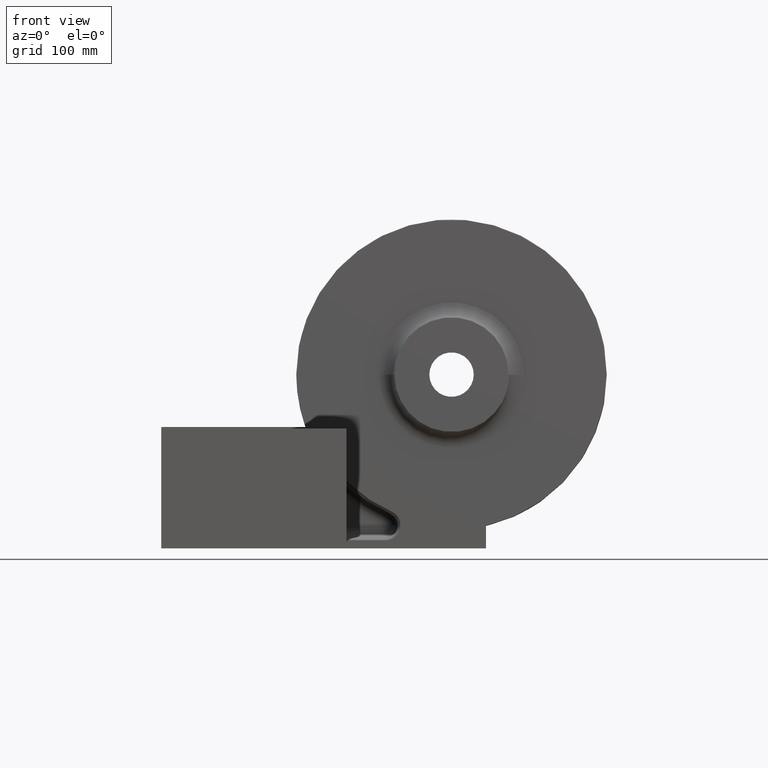
[diagram: clean part render]
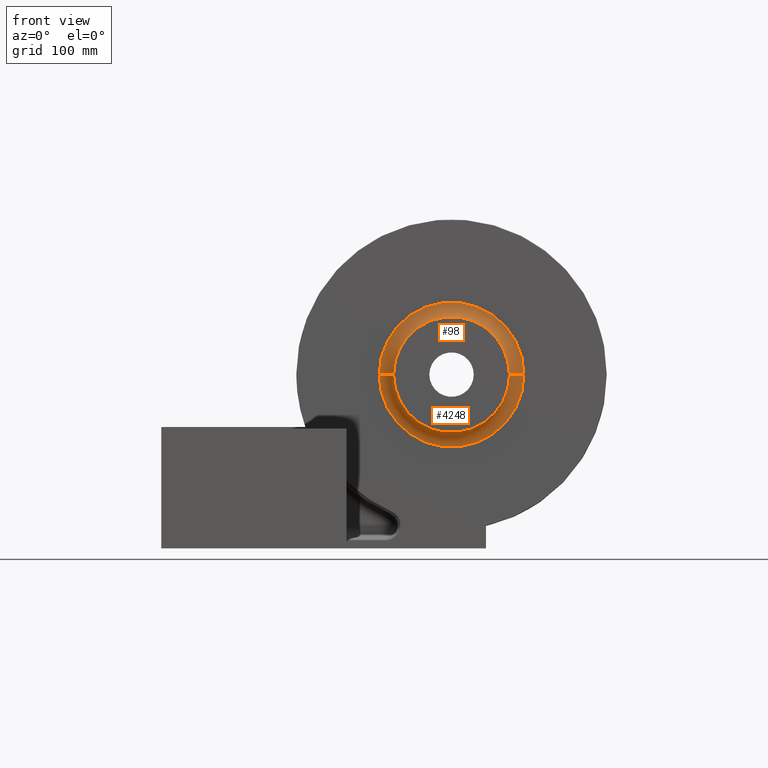
[diagram: same view with one multi-face feature highlighted, each face labeled with its STEP entity id]
A machine part, front view. The highlighted faces form ONE feature: a constant-radius fillet chain: 2 tangent blend faces with common blend radius 15 mm. The faces share edges in the B-rep.
Their STEP definitions:
[1] entity #98 (Torus):
#98 = ADVANCED_FACE ( 'NONE', ( #1834 ), #2494, .F. ) ;
#121 = DIRECTION ( 'NONE',  ( 1.000000000000000000, 0.0000000000000000000, 0.0000000000000000000 ) ) ;
#447 = DIRECTION ( 'NONE',  ( -0.0000000000000000000, 0.0000000000000000000, 1.000000000000000000 ) ) ;
#514 = CARTESIAN_POINT ( 'NONE',  ( 373.7417837622145385, 399.9998999999999683, 55.99999999999999289 ) ) ;
#629 = VERTEX_POINT ( 'NONE', #673 ) ;
#657 = CARTESIAN_POINT ( 'NONE',  ( 223.7417837622144532, 384.9999000000000251, 55.99999999999998579 ) ) ;
#673 = CARTESIAN_POINT ( 'NONE',  ( 238.7417837622145100, 384.9999000000000251, 55.99999999999998579 ) ) ;
#887 = DIRECTION ( 'NONE',  ( -1.214623636765614367E-16, -1.000000000000000000, -0.0000000000000000000 ) ) ;
#1044 = VERTEX_POINT ( 'NONE', #3683 ) ;
#1337 = CIRCLE ( 'NONE', #1490, 60.00000000000005684 ) ;
#1342 = CIRCLE ( 'NONE', #3135, 75.00000000000001421 ) ;
#1490 = AXIS2_PLACEMENT_3D ( 'NONE', #2328, #887, #121 ) ;
#1766 = ORIENTED_EDGE ( 'NONE', *, *, #3913, .F. ) ;
#1834 = FACE_OUTER_BOUND ( 'NONE', #4511, .T. ) ;
#1918 = DIRECTION ( 'NONE',  ( 1.000000000000000000, 0.0000000000000000000, 0.0000000000000000000 ) ) ;
#2002 = ORIENTED_EDGE ( 'NONE', *, *, #3216, .T. ) ;
#2107 = VERTEX_POINT ( 'NONE', #3969 ) ;
#2205 = AXIS2_PLACEMENT_3D ( 'NONE', #657, #2469, #2811 ) ;
#2328 = CARTESIAN_POINT ( 'NONE',  ( 298.7417837622145385, 384.9999000000000251, 55.99999999999999289 ) ) ;
#2389 = DIRECTION ( 'NONE',  ( 1.214623636765614367E-16, 1.000000000000000000, 0.0000000000000000000 ) ) ;
#2469 = DIRECTION ( 'NONE',  ( 1.224646799147353207E-16, -1.487484948933726914E-32, -1.000000000000000000 ) ) ;
#2494 = TOROIDAL_SURFACE ( 'NONE', #3194, 75.00000000000004263, 15.00000000000000000 ) ;
#2570 = CARTESIAN_POINT ( 'NONE',  ( 298.7417837622145385, 399.9998999999999683, 55.99999999999999289 ) ) ;
#2800 = EDGE_CURVE ( 'NONE', #1044, #629, #1337, .T. ) ;
#2811 = DIRECTION ( 'NONE',  ( -1.000000000000000000, 0.0000000000000000000, 0.0000000000000000000 ) ) ;
#2911 = CIRCLE ( 'NONE', #3225, 15.00000000000001421 ) ;
#2972 = DIRECTION ( 'NONE',  ( 1.000000000000000000, 0.0000000000000000000, 0.0000000000000000000 ) ) ;
#3122 = DIRECTION ( 'NONE',  ( 1.000000000000000000, -1.214623636765614367E-16, 0.0000000000000000000 ) ) ;
#3135 = AXIS2_PLACEMENT_3D ( 'NONE', #2570, #4081, #1918 ) ;
#3194 = AXIS2_PLACEMENT_3D ( 'NONE', #3920, #2389, #3122 ) ;
#3216 = EDGE_CURVE ( 'NONE', #3257, #2107, #1342, .T. ) ;
#3225 = AXIS2_PLACEMENT_3D ( 'NONE', #3390, #447, #2972 ) ;
#3257 = VERTEX_POINT ( 'NONE', #514 ) ;
#3337 = ORIENTED_EDGE ( 'NONE', *, *, #2800, .F. ) ;
#3376 = CIRCLE ( 'NONE', #2205, 14.99999999999998579 ) ;
#3390 = CARTESIAN_POINT ( 'NONE',  ( 373.7417837622145385, 384.9999000000000251, 55.99999999999999289 ) ) ;
#3683 = CARTESIAN_POINT ( 'NONE',  ( 358.7417837622145953, 384.9999000000000251, 55.99999999999999289 ) ) ;
#3729 = EDGE_CURVE ( 'NONE', #2107, #629, #3376, .T. ) ;
#3793 = ORIENTED_EDGE ( 'NONE', *, *, #3729, .T. ) ;
#3913 = EDGE_CURVE ( 'NONE', #3257, #1044, #2911, .T. ) ;
#3920 = CARTESIAN_POINT ( 'NONE',  ( 298.7417837622144816, 384.9999000000000251, 55.99999999999999289 ) ) ;
#3969 = CARTESIAN_POINT ( 'NONE',  ( 223.7417837622144816, 399.9998999999999683, 55.99999999999998579 ) ) ;
#4081 = DIRECTION ( 'NONE',  ( -1.214623636765614367E-16, -1.000000000000000000, -0.0000000000000000000 ) ) ;
#4511 = EDGE_LOOP ( 'NONE', ( #2002, #3793, #3337, #1766 ) ) ;
[2] entity #4248 (Torus):
#307 = AXIS2_PLACEMENT_3D ( 'NONE', #371, #4455, #3662 ) ;
#349 = DIRECTION ( 'NONE',  ( 1.000000000000000000, 0.0000000000000000000, 0.0000000000000000000 ) ) ;
#371 = CARTESIAN_POINT ( 'NONE',  ( 298.7417837622145385, 399.9998999999999683, 55.99999999999999289 ) ) ;
#447 = DIRECTION ( 'NONE',  ( -0.0000000000000000000, 0.0000000000000000000, 1.000000000000000000 ) ) ;
#514 = CARTESIAN_POINT ( 'NONE',  ( 373.7417837622145385, 399.9998999999999683, 55.99999999999999289 ) ) ;
#569 = EDGE_CURVE ( 'NONE', #2107, #3257, #2661, .T. ) ;
#629 = VERTEX_POINT ( 'NONE', #673 ) ;
#657 = CARTESIAN_POINT ( 'NONE',  ( 223.7417837622144532, 384.9999000000000251, 55.99999999999998579 ) ) ;
#669 = EDGE_CURVE ( 'NONE', #629, #1044, #1481, .T. ) ;
#673 = CARTESIAN_POINT ( 'NONE',  ( 238.7417837622145100, 384.9999000000000251, 55.99999999999998579 ) ) ;
#1044 = VERTEX_POINT ( 'NONE', #3683 ) ;
#1300 = ORIENTED_EDGE ( 'NONE', *, *, #669, .F. ) ;
#1481 = CIRCLE ( 'NONE', #2037, 60.00000000000005684 ) ;
#1496 = EDGE_LOOP ( 'NONE', ( #2077, #3261, #2814, #1300 ) ) ;
#2037 = AXIS2_PLACEMENT_3D ( 'NONE', #2214, #4507, #349 ) ;
#2077 = ORIENTED_EDGE ( 'NONE', *, *, #3729, .F. ) ;
#2107 = VERTEX_POINT ( 'NONE', #3969 ) ;
#2142 = FACE_OUTER_BOUND ( 'NONE', #1496, .T. ) ;
#2205 = AXIS2_PLACEMENT_3D ( 'NONE', #657, #2469, #2811 ) ;
#2214 = CARTESIAN_POINT ( 'NONE',  ( 298.7417837622145385, 384.9999000000000251, 55.99999999999999289 ) ) ;
#2223 = TOROIDAL_SURFACE ( 'NONE', #2929, 75.00000000000004263, 15.00000000000000000 ) ;
#2469 = DIRECTION ( 'NONE',  ( 1.224646799147353207E-16, -1.487484948933726914E-32, -1.000000000000000000 ) ) ;
#2661 = CIRCLE ( 'NONE', #307, 75.00000000000001421 ) ;
#2811 = DIRECTION ( 'NONE',  ( -1.000000000000000000, 0.0000000000000000000, 0.0000000000000000000 ) ) ;
#2814 = ORIENTED_EDGE ( 'NONE', *, *, #3913, .T. ) ;
#2850 = DIRECTION ( 'NONE',  ( 1.214623636765614367E-16, 1.000000000000000000, 0.0000000000000000000 ) ) ;
#2911 = CIRCLE ( 'NONE', #3225, 15.00000000000001421 ) ;
#2929 = AXIS2_PLACEMENT_3D ( 'NONE', #4011, #2850, #4778 ) ;
#2972 = DIRECTION ( 'NONE',  ( 1.000000000000000000, 0.0000000000000000000, 0.0000000000000000000 ) ) ;
#3225 = AXIS2_PLACEMENT_3D ( 'NONE', #3390, #447, #2972 ) ;
#3257 = VERTEX_POINT ( 'NONE', #514 ) ;
#3261 = ORIENTED_EDGE ( 'NONE', *, *, #569, .T. ) ;
#3376 = CIRCLE ( 'NONE', #2205, 14.99999999999998579 ) ;
#3390 = CARTESIAN_POINT ( 'NONE',  ( 373.7417837622145385, 384.9999000000000251, 55.99999999999999289 ) ) ;
#3662 = DIRECTION ( 'NONE',  ( 1.000000000000000000, 0.0000000000000000000, 0.0000000000000000000 ) ) ;
#3683 = CARTESIAN_POINT ( 'NONE',  ( 358.7417837622145953, 384.9999000000000251, 55.99999999999999289 ) ) ;
#3729 = EDGE_CURVE ( 'NONE', #2107, #629, #3376, .T. ) ;
#3913 = EDGE_CURVE ( 'NONE', #3257, #1044, #2911, .T. ) ;
#3969 = CARTESIAN_POINT ( 'NONE',  ( 223.7417837622144816, 399.9998999999999683, 55.99999999999998579 ) ) ;
#4011 = CARTESIAN_POINT ( 'NONE',  ( 298.7417837622144816, 384.9999000000000251, 55.99999999999999289 ) ) ;
#4248 = ADVANCED_FACE ( 'NONE', ( #2142 ), #2223, .F. ) ;
#4455 = DIRECTION ( 'NONE',  ( -1.214623636765614367E-16, -1.000000000000000000, -0.0000000000000000000 ) ) ;
#4507 = DIRECTION ( 'NONE',  ( -1.214623636765614367E-16, -1.000000000000000000, -0.0000000000000000000 ) ) ;
#4778 = DIRECTION ( 'NONE',  ( 1.000000000000000000, -1.214623636765614367E-16, 0.0000000000000000000 ) ) ;